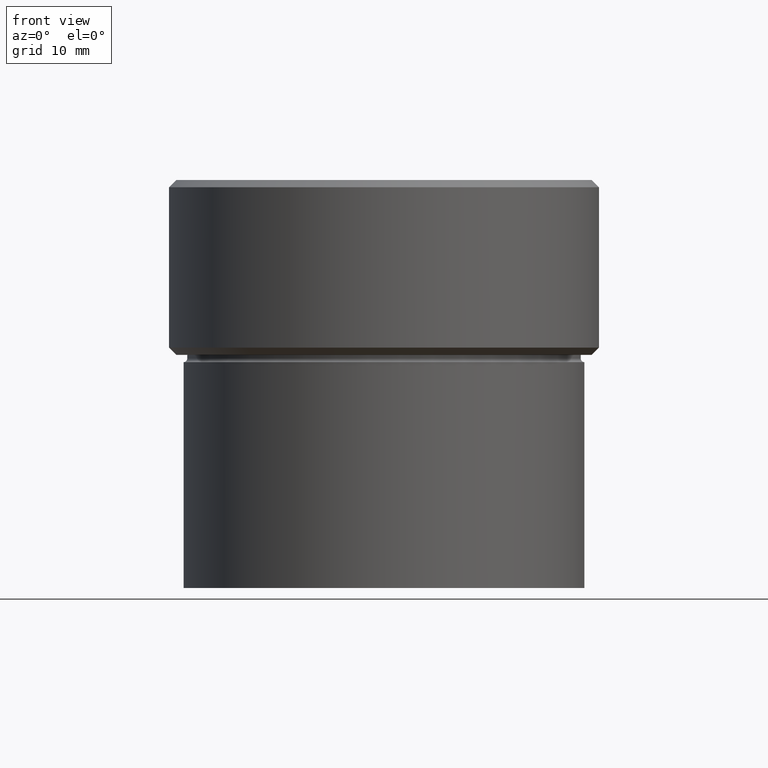
[diagram: clean part render]
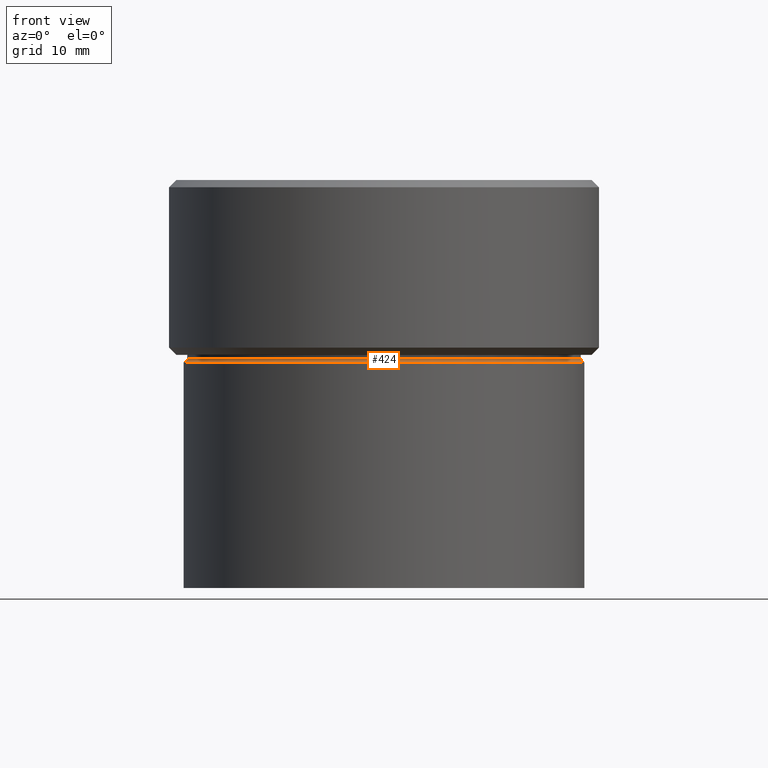
[diagram: same view with one face highlighted and labeled with its STEP entity id]
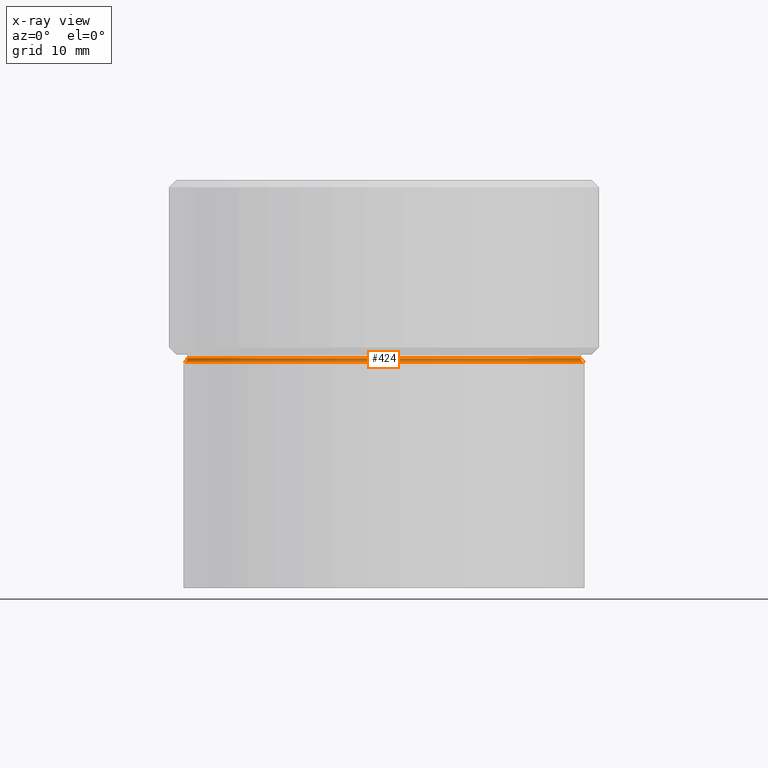
[diagram: x-ray of the same camera — body ghosted, the highlighted face saturated]
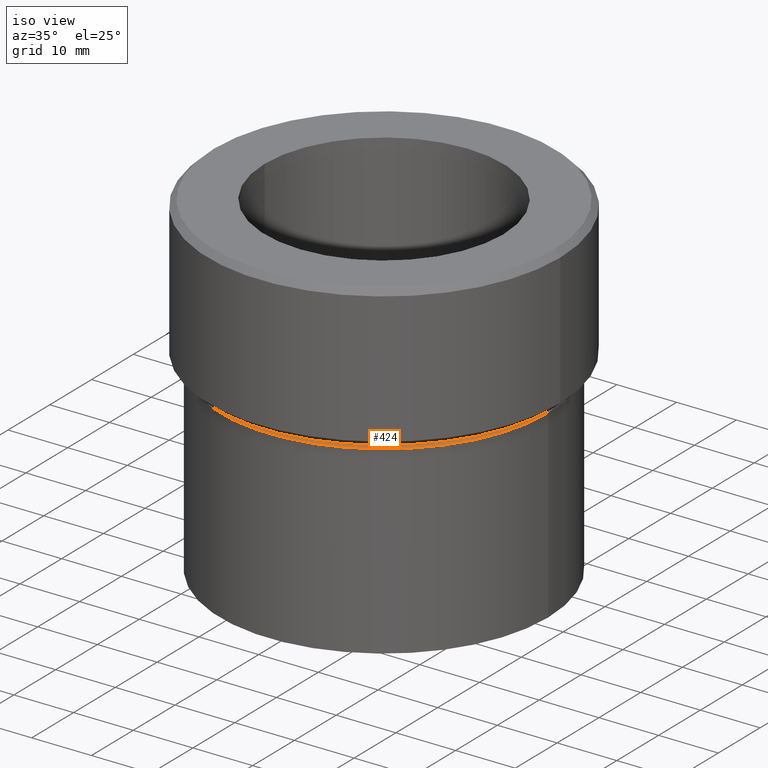
[diagram: same view with one face highlighted and labeled with its STEP entity id]
A machine part, front view. The second image highlights one B-rep face of the part: STEP entity #424.
The next image is the same camera in x-ray: the body ghosted, the highlighted face saturated — about 0% of this face is hidden behind the body in this view.
A second angle (iso view) of the same face is appended — the face is thin or edge-on in the first view.
In plain terms, the highlighted toroidal blend (fillet) surface has major radius 27.5 mm and minor (blend) radius 0.5 mm.
Its self-contained STEP definition (entity closure, byte-faithful):
#36 = VERTEX_POINT ( 'NONE', #113 ) ;
#37 = AXIS2_PLACEMENT_3D ( 'NONE', #229, #281, #42 ) ;
#42 = DIRECTION ( 'NONE',  ( -1.000000000000000000, 1.224646799147349509E-16, 0.000000000000000000 ) ) ;
#50 = CARTESIAN_POINT ( 'NONE',  ( -27.00000000000000355, 3.306546357697854128E-15, -24.49999999999999645 ) ) ;
#70 = EDGE_CURVE ( 'NONE', #128, #36, #176, .T. ) ;
#82 = CARTESIAN_POINT ( 'NONE',  ( 0.000000000000000000, 0.000000000000000000, -24.99999999999999645 ) ) ;
#86 = AXIS2_PLACEMENT_3D ( 'NONE', #491, #196, #372 ) ;
#87 = DIRECTION ( 'NONE',  ( 1.000000000000000000, 0.000000000000000000, 0.000000000000000000 ) ) ;
#113 = CARTESIAN_POINT ( 'NONE',  ( -27.50000000000000355, 3.367778697655222096E-15, -24.99999999999999645 ) ) ;
#128 = VERTEX_POINT ( 'NONE', #50 ) ;
#149 = CIRCLE ( 'NONE', #86, 0.5000000000000004441 ) ;
#150 = ORIENTED_EDGE ( 'NONE', *, *, #481, .F. ) ;
#176 = CIRCLE ( 'NONE', #37, 0.5000000000000004441 ) ;
#196 = DIRECTION ( 'NONE',  ( 0.000000000000000000, -1.000000000000000000, 0.000000000000000000 ) ) ;
#209 = AXIS2_PLACEMENT_3D ( 'NONE', #82, #463, #87 ) ;
#210 = VERTEX_POINT ( 'NONE', #521 ) ;
#229 = CARTESIAN_POINT ( 'NONE',  ( -27.50000000000000355, 3.367778697655222096E-15, -24.49999999999999645 ) ) ;
#231 = TOROIDAL_SURFACE ( 'NONE', #410, 27.50000000000000355, 0.5000000000000000000 ) ;
#264 = DIRECTION ( 'NONE',  ( 1.000000000000000000, 0.000000000000000000, 0.000000000000000000 ) ) ;
#269 = ORIENTED_EDGE ( 'NONE', *, *, #454, .T. ) ;
#274 = CARTESIAN_POINT ( 'NONE',  ( 0.000000000000000000, 0.000000000000000000, -24.49999999999999645 ) ) ;
#279 = AXIS2_PLACEMENT_3D ( 'NONE', #313, #398, #264 ) ;
#281 = DIRECTION ( 'NONE',  ( 1.224646799147353207E-16, 1.000000000000000000, 0.000000000000000000 ) ) ;
#313 = CARTESIAN_POINT ( 'NONE',  ( 0.000000000000000000, 0.000000000000000000, -24.49999999999999645 ) ) ;
#314 = CIRCLE ( 'NONE', #209, 27.50000000000000355 ) ;
#319 = FACE_OUTER_BOUND ( 'NONE', #377, .T. ) ;
#370 = DIRECTION ( 'NONE',  ( 1.000000000000000000, 0.000000000000000000, 0.000000000000000000 ) ) ;
#372 = DIRECTION ( 'NONE',  ( 0.000000000000000000, 0.000000000000000000, -1.000000000000000000 ) ) ;
#377 = EDGE_LOOP ( 'NONE', ( #150, #440, #269, #432 ) ) ;
#398 = DIRECTION ( 'NONE',  ( -0.000000000000000000, -0.000000000000000000, 1.000000000000000000 ) ) ;
#410 = AXIS2_PLACEMENT_3D ( 'NONE', #274, #449, #370 ) ;
#424 = ADVANCED_FACE ( 'NONE', ( #319 ), #231, .F. ) ;
#432 = ORIENTED_EDGE ( 'NONE', *, *, #530, .F. ) ;
#440 = ORIENTED_EDGE ( 'NONE', *, *, #70, .T. ) ;
#449 = DIRECTION ( 'NONE',  ( -0.000000000000000000, -0.000000000000000000, 1.000000000000000000 ) ) ;
#454 = EDGE_CURVE ( 'NONE', #36, #210, #314, .T. ) ;
#463 = DIRECTION ( 'NONE',  ( -0.000000000000000000, -0.000000000000000000, 1.000000000000000000 ) ) ;
#481 = EDGE_CURVE ( 'NONE', #128, #487, #523, .T. ) ;
#487 = VERTEX_POINT ( 'NONE', #522 ) ;
#491 = CARTESIAN_POINT ( 'NONE',  ( 27.50000000000000355, 0.000000000000000000, -24.49999999999999645 ) ) ;
#521 = CARTESIAN_POINT ( 'NONE',  ( 27.50000000000000355, 0.000000000000000000, -24.99999999999999645 ) ) ;
#522 = CARTESIAN_POINT ( 'NONE',  ( 27.00000000000000355, 0.000000000000000000, -24.49999999999999645 ) ) ;
#523 = CIRCLE ( 'NONE', #279, 27.00000000000000355 ) ;
#530 = EDGE_CURVE ( 'NONE', #487, #210, #149, .T. ) ;